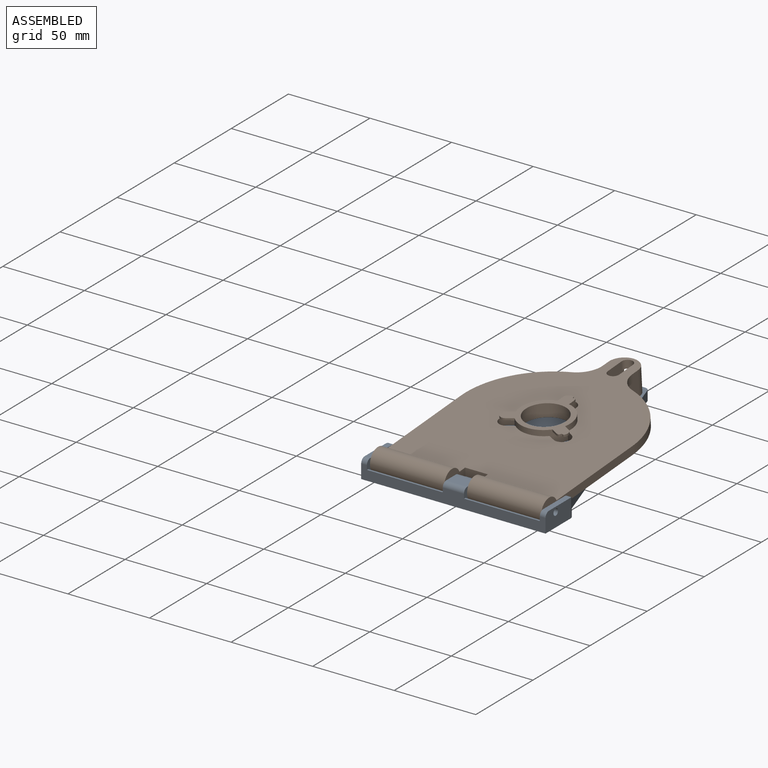
[diagram: assembled view]
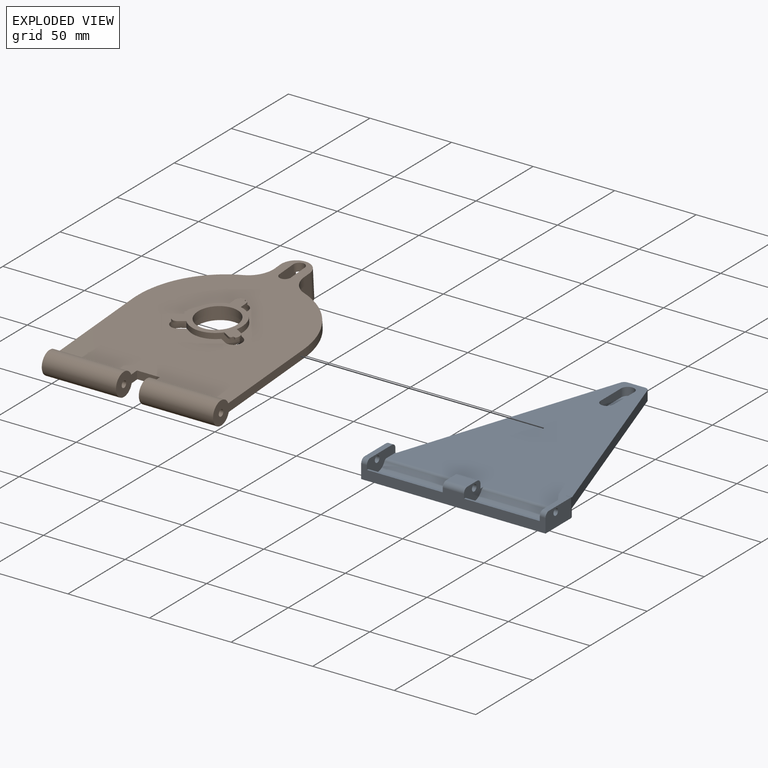
[diagram: exploded view]
GUIDED TOUR — FREECAD ASSEMBLY "ReolinkCameraSupport"

This assembly has 2 components, labeled P0..P1 below (a component is one placed body or linked part; the same part can appear more than once), held together by 1 modeled joint. A joint is a constraint between two components; its type names the relative motion it leaves free:
  REVOLUTE — leaves rotation about the listed axis free (a hinge).
Axis/direction vectors are unit vectors and 'through' points are millimeter coordinates, both in the assembly's world frame.

MATES
  1. REVOLUTE [Revolute] "Joint": P0 <-> P1, axis (1.000, 0.000, 0.000) through (107.25, 0.00, 2.50) mm

ASSEMBLY ORDER
  1. P0 — the base component [order verified]
  2. P1 [order verified]
(P1 verified with a relaxed clearance tolerance: the source model stores slight part interference there.)
Order-tag legend:
  [order verified] — this step's position reverses a verified removal order: the component was checked to insert without passing through the ones already placed.

Of the 2 components, 2 carry a construction recipe — the FreeCAD feature program (sketches with constraints, then the solid features that consume them) that regenerates the part from scratch, quoted from this document or from the linked companion document it references; the rest are supplied as boundary geometry only. The tour below walks the components in assembly order: each is shown spotlighted twice — in the assembled view, then in the exploded view, where a leader line traces a displaced component back to its assembled socket (components that stay in place when exploded have no leader line; saturated green if recipe-attached, orange if geometry-only; every other component desaturated gray) — followed by its recipe or geometry summary and the mates that hold it.
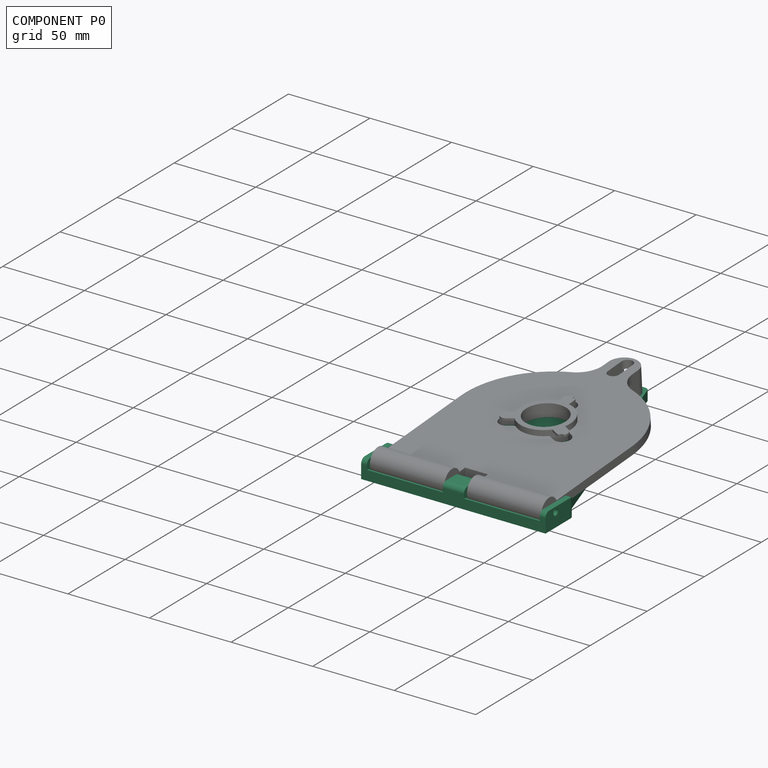
[diagram: component P0 — assembled]
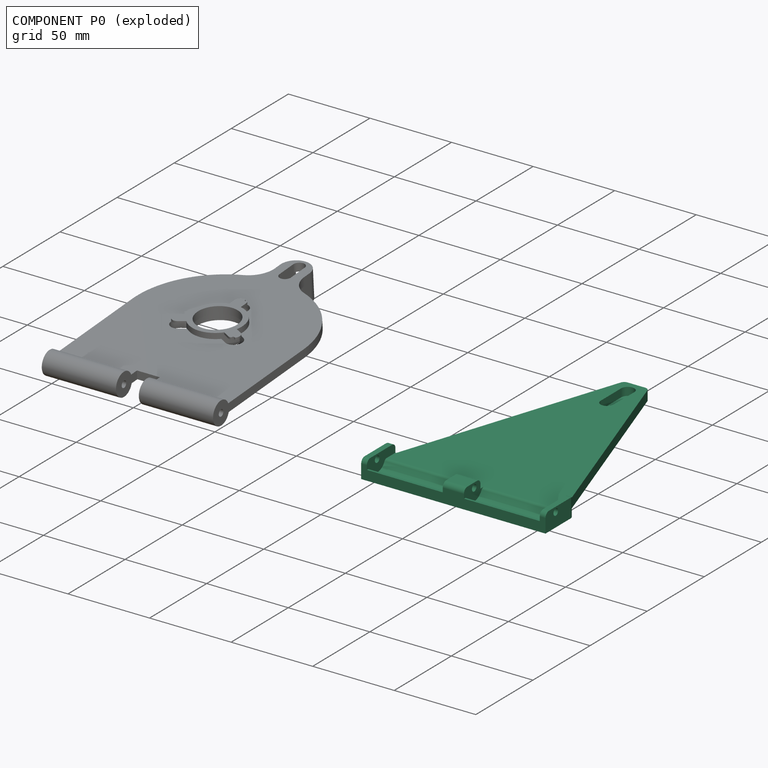
[diagram: component P0 — exploded]
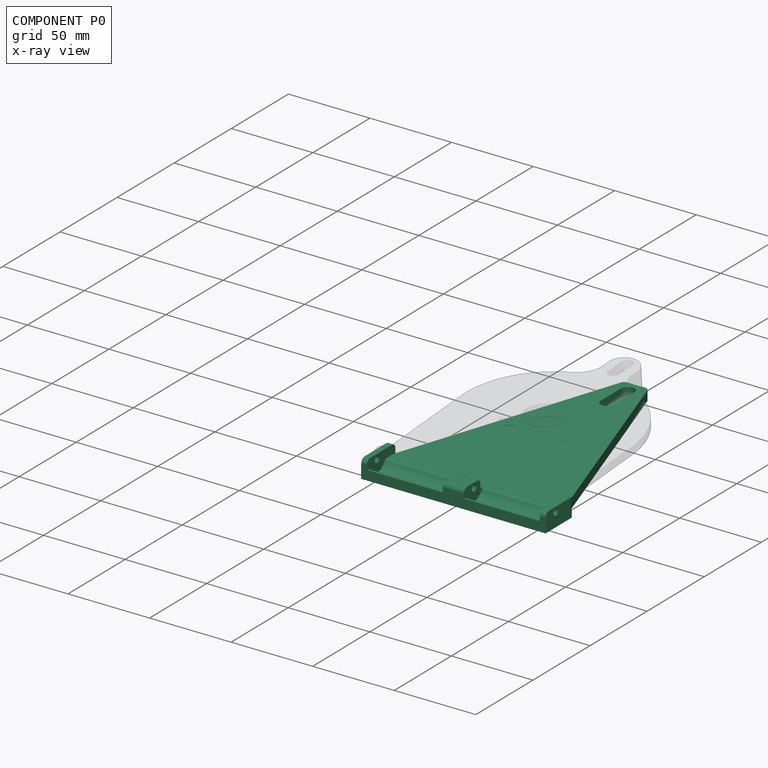
[diagram: component P0 — x-ray view]
COMPONENT P0 — recipe-attached ("Body002", modeled in this document).
Held by: REVOLUTE mate "Joint" to P1.
Construction recipe (the document's own serialized feature program — sketch geometry with constraints, then the solid features built on it; lengths are millimeters unless a unit is written):

FEATURE [PartDesign::SubShapeBinder] Binder
  BindCopyOnChange = 0
  BindMode = 0
  ClaimChildren = false
  Context = -> Body001 [Binder.]
  Fuse = false
  MakeFace = true
  OffsetFill = false
  OffsetIntersection = false
  OffsetJoinType = 0
  OffsetOpenResult = false
  PartialLoad = false
  Refine = true
  Relative = true
  Support = -> [Body[Pocket006.Face18,Pocket006.Face36,Pocket006.Face3,Pocket006.Face39,Pocket006.Face6,Pocket006.Face9,Pocket006.Face38]]
  _Version = 2
FEATURE [Sketcher::SketchObject] Sketch014
  ArcFitTolerance = 1e-06
  AttachmentSupport = -> [Origin002]
  ExternalGeometry = -> [Binder]
  ExternalTypes = [0,0]
  FullyConstrained = true
  MakeInternals = false
  MapMode = 5
  sketch-geometry (9):
    g0: LineSegment StartX=45 StartY=151.223 StartZ=0 EndX=2.3022e-12 EndY=16 EndZ=0
    g1: LineSegment StartX=2.3022e-12 StartY=16 StartZ=0 EndX=-4 EndY=16 EndZ=0
    g2: LineSegment StartX=-4 StartY=16 StartZ=0 EndX=-4 EndY=-9 EndZ=0
    g3: LineSegment StartX=-4 StartY=-9 StartZ=0 EndX=109 EndY=-9 EndZ=0
    g4: LineSegment StartX=109 StartY=-9 StartZ=0 EndX=109 EndY=16 EndZ=0
    g5: LineSegment StartX=109 StartY=16 StartZ=0 EndX=105 EndY=16 EndZ=0
    g6: LineSegment StartX=105 StartY=16 StartZ=0 EndX=60 EndY=151.223 EndZ=0
    g7: LineSegment StartX=60 StartY=151.223 StartZ=0 EndX=45 EndY=151.223 EndZ=0
    g8: GeomPoint X=52.5 Y=151.223 Z=0
  constraints (25):
    c: PointOnObject(g0,g-15)
    c: Coincident(g0,g1)
    c: Horizontal(g1)
    c: Coincident(g1,g2)
    c: Vertical(g2)
    c: Coincident(g2,g3)
    c: Horizontal(g3)
    c: Coincident(g3,g4)
    c: Vertical(g4)
    c: Coincident(g4,g5)
    c: PointOnObject(g5,g-9)
    c: Horizontal(g5)
    c: Coincident(g5,g6)
    c: Coincident(g6,g7)
    c: Coincident(g7,g0)
    c: Horizontal(g7)
    c: Symmetric(g7,g7,g8)
    c: Vertical(g8,g-31)
    c: DistanceX(g7,g7) = 15
    c: Distance(g-5,g7) = 2
    c: Equal(g5,g1)
    c: Distance(g1,g1) = 4
    c: Distance(g-35,g3) = 2
    c: Horizontal(g1,g5)
    c: DistanceY(g2,g2) = 25
FEATURE [PartDesign::Pad] Pad008
  Direction = (0,0,1)
  Length = 6
  Length2 = 10
  Profile = -> Sketch014
  ReferenceAxis = -> Sketch014 [N_Axis]
  Refine = true
  Reversed = true
  SideType = 0
  Suppressed = false
  Type = 0
  Type2 = 0
FEATURE [Sketcher::SketchObject] Sketch015
  ArcFitTolerance = 1e-06
  AttachmentSupport = -> [Pad008]
  ExternalGeometry = -> [Pad008,Binder]
  ExternalTypes = [0,0,0,0]
  FullyConstrained = true
  MakeInternals = false
  MapMode = 5
  sketch-geometry (12):
    g0: LineSegment StartX=-4 StartY=-9 StartZ=0 EndX=-0.5 EndY=-9 EndZ=0
    g1: LineSegment StartX=-0.5 StartY=-9 StartZ=0 EndX=-0.5 EndY=16 EndZ=0
    g2: LineSegment StartX=-0.5 StartY=16 StartZ=0 EndX=-4 EndY=16 EndZ=0
    g3: LineSegment StartX=-4 StartY=16 StartZ=0 EndX=-4 EndY=-9 EndZ=0
    g4: LineSegment StartX=109 StartY=-9 StartZ=0 EndX=109 EndY=16 EndZ=0
    g5: LineSegment StartX=109 StartY=16 StartZ=0 EndX=105.5 EndY=16 EndZ=0
    g6: LineSegment StartX=105.5 StartY=16 StartZ=0 EndX=105.5 EndY=-9 EndZ=0
    g7: LineSegment StartX=105.5 StartY=-9 StartZ=0 EndX=109 EndY=-9 EndZ=0
    g8: LineSegment StartX=46 StartY=-9 StartZ=0 EndX=59 EndY=-9 EndZ=0
    g9: LineSegment StartX=59 StartY=-9 StartZ=0 EndX=59 EndY=5.53835 EndZ=0
    g10: LineSegment StartX=59 StartY=5.53835 StartZ=0 EndX=46 EndY=5.53835 EndZ=0
    g11: LineSegment StartX=46 StartY=5.53835 StartZ=0 EndX=46 EndY=-9 EndZ=0
  constraints (33):
    c: Coincident(g0,g1)
    c: Coincident(g1,g2)
    c: Coincident(g2,g3)
    c: Coincident(g3,g0)
    c: Horizontal(g0)
    c: Horizontal(g2)
    c: Vertical(g1)
    c: DistanceX(g2,g2) = 3.5
    c: Coincident(g-5,g2)
    c: Coincident(g0,g-6)
    c: Coincident(g4,g5)
    c: Coincident(g5,g6)
    c: Coincident(g6,g7)
    c: Coincident(g7,g4)
    c: Vertical(g4)
    c: Vertical(g6)
    c: Horizontal(g5)
    c: Horizontal(g7)
    c: Coincident(g4,g-7)
    c: PointOnObject(g5,g-8)
    c: DistanceX(g5,g5) = 3.5
    c: Coincident(g8,g9)
    c: Coincident(g9,g10)
    c: Coincident(g10,g11)
    c: Coincident(g11,g8)
    c: Horizontal(g8)
    c: Horizontal(g10)
    c: Vertical(g9)
    c: Vertical(g11)
    c: PointOnObject(g8,g-6)
    c: Distance(g-12,g9) = 0.5
    c: Distance(g11,g-11) = 0.5
    c: Distance(g-13,g10) = 6
FEATURE [PartDesign::Pad] Pad009
  BaseFeature = -> Pad008
  Direction = (0,0,1)
  Length = 5.5
  Length2 = 10
  Profile = -> Sketch015
  ReferenceAxis = -> Sketch015 [N_Axis]
  Refine = true
  SideType = 0
  Suppressed = false
  Type = 0
  Type2 = 0
FEATURE [PartDesign::Pocket] Pocket007
  BaseFeature = -> Pad009
  Direction = (-1,0,0)
  Length = 5
  Length2 = 5
  Profile = -> Binder [Edge45]
  Refine = true
  SideType = 2
  Suppressed = false
  Type = 1
  Type2 = 0
FEATURE [PartDesign::Fillet] Fillet002
  Base = -> Pocket007 [Edge1,Edge5,Edge9,Edge37,Edge50,Edge44,Edge36,Edge42,Edge31,Edge10]
  BaseFeature = -> Pocket007
  Radius = 3
  Refine = true
  SupportTransform = false
  Suppressed = false
  UseAllEdges = false
FEATURE [Sketcher::SketchObject] Sketch016
  ArcFitTolerance = 1e-06
  AttachmentSupport = -> [Fillet002]
  ExternalGeometry = -> [Binder]
  ExternalTypes = [0]
  FullyConstrained = true
  MakeInternals = false
  MapMode = 5
  Placement = pos=(46,0,0) rot=(0.57735,-0.57735,-0.57735;2.0944rad)
  sketch-geometry (1):
    g0: Circle CenterX=0 CenterY=2.5 CenterZ=0 NormalX=0 NormalY=0 NormalZ=1 AngleXU=0 Radius=7.4
  constraints (2):
    c: Coincident(g0,g-3)
    c: Distance(g-3,g0) = 0.4
FEATURE [PartDesign::Pocket] Pocket008
  BaseFeature = -> Fillet002
  Direction = (1,0,0)
  Length = 5
  Length2 = 5
  Profile = -> Sketch016
  ReferenceAxis = -> Sketch016 [N_Axis]
  Refine = true
  SideType = 0
  Suppressed = false
  Type = 3
  Type2 = 0
  UpToFace = -> Fillet002 [Face11]
FEATURE [Sketcher::SketchObject] Sketch017
  ArcFitTolerance = 1e-06
  AttachmentSupport = -> [Pocket008]
  ExternalGeometry = -> [Binder,Pocket008]
  ExternalTypes = [0,0]
  FullyConstrained = true
  MakeInternals = false
  MapMode = 5
  Placement = pos=(59,0,0) rot=(0.57735,0.57735,0.57735;2.0944rad)
  sketch-geometry (1):
    g0: Circle CenterX=0 CenterY=2.5 CenterZ=0 NormalX=0 NormalY=0 NormalZ=1 AngleXU=0 Radius=7.4
  constraints (2):
    c: Coincident(g0,g-6)
    c: PointOnObject(g-6,g0)
FEATURE [PartDesign::Pocket] Pocket009
  BaseFeature = -> Pocket008
  Direction = (-1,0,0)
  Length = 5
  Length2 = 5
  Profile = -> Sketch017
  ReferenceAxis = -> Sketch017 [N_Axis]
  Refine = true
  SideType = 0
  Suppressed = false
  Type = 3
  Type2 = 0
  UpToFace = -> Pocket008 [Face9]
FEATURE [PartDesign::Fillet] Fillet003
  Base = -> Pocket009 [Edge13,Edge9,Edge40,Edge52]
  BaseFeature = -> Pocket009
  Radius = 2
  Refine = true
  SupportTransform = false
  Suppressed = false
  UseAllEdges = false
FEATURE [Sketcher::SketchObject] Sketch018
  ArcFitTolerance = 1e-06
  AttachmentSupport = -> [Fillet003]
  ExternalGeometry = -> [Binder]
  ExternalTypes = [0]
  FullyConstrained = true
  MakeInternals = false
  MapMode = 5
  sketch-geometry (7):
    g0: ArcOfCircle [constr] CenterX=52.5 CenterY=131.723 CenterZ=0 NormalX=0 NormalY=0 NormalZ=1 AngleXU=0 Radius=4 StartAngle=3.14159 EndAngle=6.28319
    g1: ArcOfCircle CenterX=52.5 CenterY=143.723 CenterZ=0 NormalX=0 NormalY=0 NormalZ=1 AngleXU=0 Radius=4 StartAngle=3.1e-15 EndAngle=3.14159
    g2: LineSegment StartX=48.5 StartY=131.723 StartZ=0 EndX=48.5 EndY=143.723 EndZ=0
    g3: LineSegment StartX=56.5 StartY=131.723 StartZ=0 EndX=56.5 EndY=143.723 EndZ=0
    g4: LineSegment StartX=48.5 StartY=131.723 StartZ=0 EndX=48.5 EndY=125.723 EndZ=0
    g5: ArcOfCircle CenterX=52.5 CenterY=125.723 CenterZ=0 NormalX=0 NormalY=0 NormalZ=1 AngleXU=0 Radius=4 StartAngle=3.14159 EndAngle=6.28319
    g6: LineSegment StartX=56.5 StartY=125.723 StartZ=0 EndX=56.5 EndY=131.723 EndZ=0
  constraints (15):
    c: Tangent(g0,g2) = 1.5708
    c: Tangent(g0,g3) = -1.5708
    c: Tangent(g1,g2) = 1.5708
    c: Tangent(g1,g3) = -1.5708
    c: Equal(g0,g1)
    c: Radius(g0) = 4
    c: Coincident(g0,g-34)
    c: Coincident(g1,g-31)
    c: Coincident(g0,g4)
    c: Tangent(g4,g5) = -1.5708
    c: Tangent(g5,g6) = -1.5708
    c: Vertical(g6)
    c: Coincident(g0,g6)
    c: DistanceY(g6,g6) = 6
    c: Vertical(g4)
FEATURE [PartDesign::Pocket] Pocket010
  BaseFeature = -> Fillet003
  Direction = (0,0,-1)
  Length = 5
  Length2 = 5
  Profile = -> Sketch018
  ReferenceAxis = -> Sketch018 [N_Axis]
  Refine = true
  SideType = 0
  Suppressed = false
  Type = 0
  Type2 = 0
FEATURE [PartDesign::Body] Body001
  AllowCompound = false
  Group = -> [Binder,Sketch014,Pad008,Sketch015,Pad009,Pocket007,Fillet002,Sketch016,Pocket008,Sketch017,Pocket009,Fillet003,Sketch018,Pocket010]
  Origin = -> Origin002
  Tip = -> Pocket010
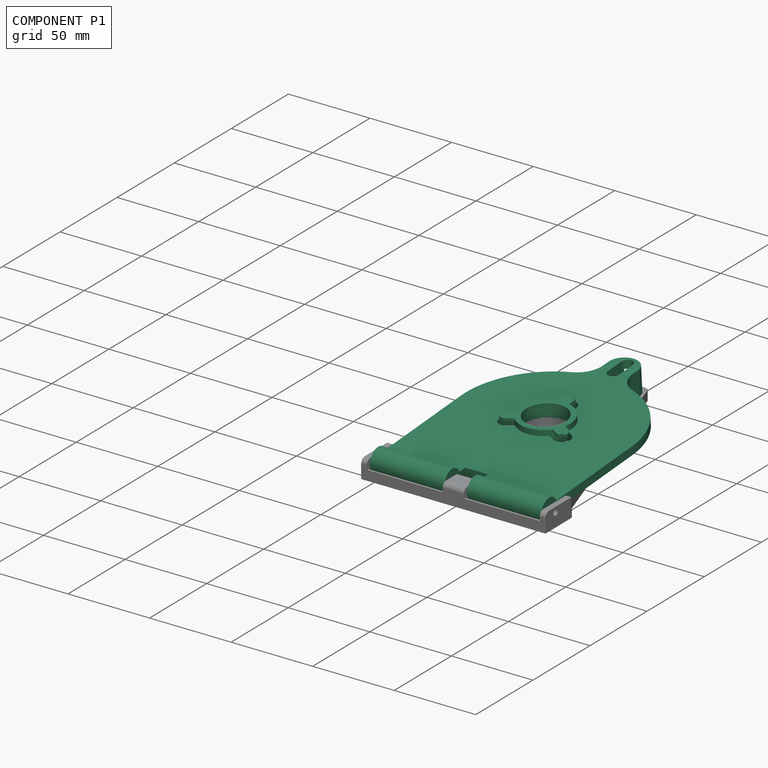
[diagram: component P1 — assembled]
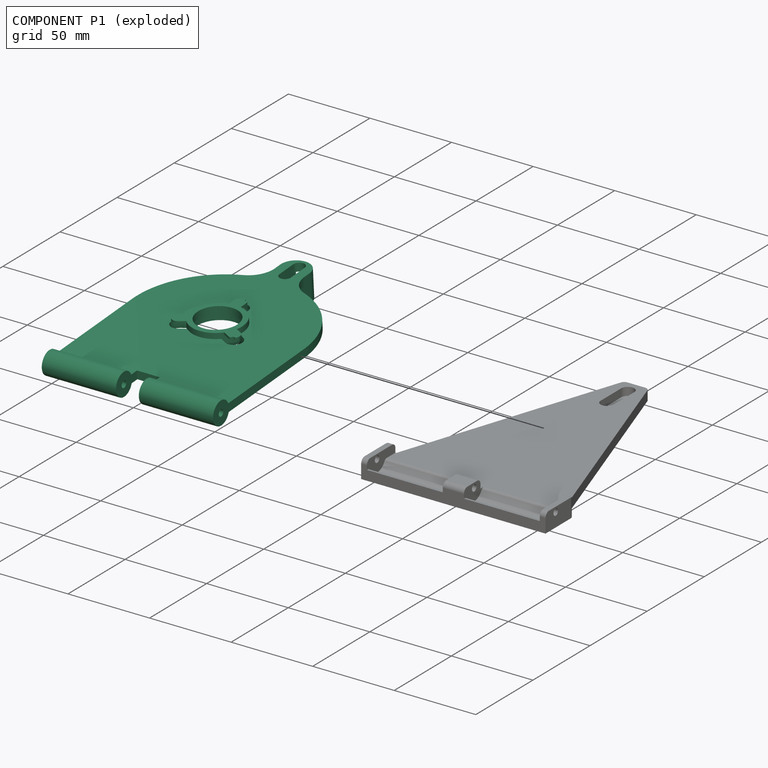
[diagram: component P1 — exploded]
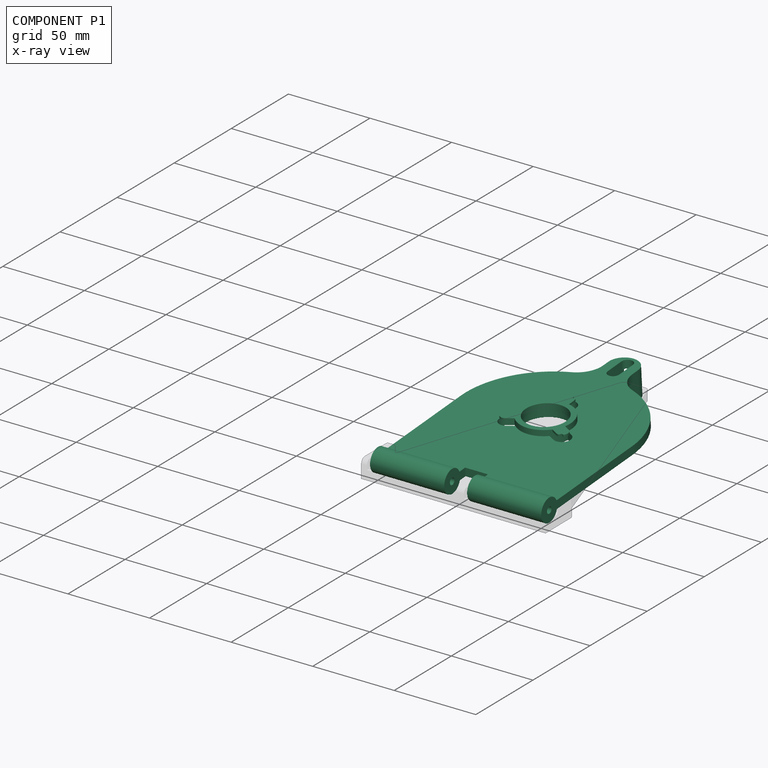
[diagram: component P1 — x-ray view]
COMPONENT P1 — recipe-attached ("Body003", modeled in this document).
Held by: REVOLUTE mate "Joint" to P0.
Construction recipe (the document's own serialized feature program — sketch geometry with constraints, then the solid features built on it; lengths are millimeters unless a unit is written):

FEATURE [Sketcher::SketchObject] Sketch
  ArcFitTolerance = 1e-06
  AttachmentSupport = -> [Origin]
  ExternalTypes = [0]
  FullyConstrained = true
  MakeInternals = false
  MapMode = 5
  sketch-geometry (4):
    g0: LineSegment StartX=0 StartY=0 StartZ=0 EndX=1.04166e-11 EndY=72.5 EndZ=0
    g1: ArcOfCircle CenterX=52.5 CenterY=72.5 CenterZ=0 NormalX=0 NormalY=0 NormalZ=1 AngleXU=0 Radius=52.5 StartAngle=-2.04e-14 EndAngle=3.14159
    g2: LineSegment StartX=105 StartY=72.5 StartZ=0 EndX=105 EndY=0 EndZ=0
    g3: LineSegment StartX=105 StartY=0 StartZ=0 EndX=0 EndY=0 EndZ=0
  constraints (10):
    c: Coincident(g-1,g0)
    c: PointOnObject(g0,g-2)
    c: Tangent(g0,g1) = 1.5708
    c: Tangent(g1,g2) = 1.5708
    c: Coincident(g2,g3)
    c: Coincident(g3,g0)
    c: Horizontal(g3)
    c: Vertical(g2)
    c: Radius(g1) = 52.5
    c: Distance(g1,g3) = 20
FEATURE [PartDesign::Pad] Pad
  Direction = (0,0,1)
  Length = 5
  Length2 = 10
  Profile = -> Sketch
  ReferenceAxis = -> Sketch [N_Axis]
  Refine = true
  SideType = 0
  Suppressed = false
  Type = 0
  Type2 = 0
FEATURE [Sketcher::SketchObject] Sketch001
  ArcFitTolerance = 1e-06
  AttachmentSupport = -> [Pad]
  ExternalGeometry = -> [Pad]
  ExternalTypes = [0]
  FullyConstrained = true
  MakeInternals = false
  MapMode = 5
  Placement = pos=(0,0,5) rot=(0,0,1;0rad)
  sketch-geometry (1):
    g0: Circle CenterX=52.5 CenterY=72.5 CenterZ=0 NormalX=0 NormalY=0 NormalZ=1 AngleXU=0 Radius=15.8
  constraints (2):
    c: Diameter(g0) = 31.6
    c: Coincident(g0,g-3)
FEATURE [PartDesign::Pad] Pad001
  BaseFeature = -> Pad
  Direction = (0,0,1)
  Length = 3.5
  Length2 = 10
  Profile = -> Sketch001
  ReferenceAxis = -> Sketch001 [N_Axis]
  Refine = true
  SideType = 0
  Suppressed = false
  Type = 0
  Type2 = 0
FEATURE [Sketcher::SketchObject] Sketch002
  ArcFitTolerance = 1e-06
  AttachmentSupport = -> [Pad001]
  ExternalGeometry = -> [Pad001]
  ExternalTypes = [0]
  FullyConstrained = true
  MakeInternals = false
  MapMode = 5
  Placement = pos=(0,0,8.5) rot=(0,0,1;0rad)
  sketch-geometry (11):
    g0: LineSegment StartX=49 StartY=87.9075 StartZ=0 EndX=49 EndY=92.4075 EndZ=0
    g1: ArcOfCircle CenterX=52.5 CenterY=92.4075 CenterZ=0 NormalX=0 NormalY=0 NormalZ=1 AngleXU=0 Radius=3.5 StartAngle=8e-16 EndAngle=0.608246
    g2: LineSegment StartX=56 StartY=92.4075 StartZ=0 EndX=56 EndY=87.9075 EndZ=0
    g3: LineSegment StartX=56 StartY=87.9075 StartZ=0 EndX=49 EndY=87.9075 EndZ=0
    g4: GeomPoint X=52.5 Y=87.9075 Z=0
    g5: LineSegment [constr] StartX=52.5 StartY=95.9075 StartZ=0 EndX=56 EndY=95.9075 EndZ=0
    g6: LineSegment [constr] StartX=56 StartY=95.9075 StartZ=0 EndX=56 EndY=92.4075 EndZ=0
    g7: LineSegment StartX=53.5 StartY=95.7616 StartZ=0 EndX=53.8741 EndY=94.3075 EndZ=0
    g8: LineSegment StartX=53.8741 StartY=94.3075 StartZ=0 EndX=55.3723 EndY=94.4075 EndZ=0
    g9: ArcOfCircle CenterX=52.5 CenterY=92.4075 CenterZ=0 NormalX=0 NormalY=0 NormalZ=1 AngleXU=0 Radius=3.5 StartAngle=1.28104 EndAngle=3.14159
    g10: GeomPoint [constr] X=52.5 Y=72.5 Z=0
  constraints (28):
    c: PointOnObject(g0,g-3)
    c: Vertical(g0)
    c: Tangent(g0,g9) = 1.5708
    c: Tangent(g1,g2) = 1.5708
    c: Coincident(g2,g3)
    c: Coincident(g3,g0)
    c: Horizontal(g3)
    c: Vertical(g2)
    c: PointOnObject(g2,g-3)
    c: Symmetric(g3,g3,g4)
    c: DistanceX(g3,g3) = 7
    c: Horizontal(g5)
    c: Coincident(g5,g6)
    c: Coincident(g6,g1)
    c: Vertical(g6)
    c: DistanceY(g2,g5) = 8
    c: Vertical(g5,g1)
    c: Coincident(g7,g8)
    c: Distance(g8,g5) = 1.5
    c: DistanceX(g5,g7) = 1
    c: Equal(g8,g7)
    c: Distance(g7,g5) = 1.6
    c: PointOnObject(g5,g9)
    c: Coincident(g7,g9)
    c: Coincident(g8,g1)
    c: Coincident(g1,g9)
    c: Equal(g9,g1)
    c: Coincident(g10,g-3)
FEATURE [PartDesign::Pad] Pad002
  BaseFeature = -> Pad001
  Direction = (0,0,1)
  Length = 1.25
  Length2 = 10
  Profile = -> Sketch002
  ReferenceAxis = -> Sketch002 [N_Axis]
  Refine = true
  Reversed = true
  SideType = 0
  Suppressed = false
  Type = 0
  Type2 = 0
FEATURE [PartDesign::Fillet] Fillet
  Base = -> Pad002 [Edge30,Edge34,Edge32]
  BaseFeature = -> Pad002
  Radius = 0.5
  Refine = true
  SupportTransform = false
  Suppressed = false
  UseAllEdges = false
FEATURE [PartDesign::Line] DatumLine
  AttacherType = Attacher::AttachEngineLine
  AttachmentOffset = pos=(0,-1.09,0) rot=(0,0,1;0rad)
  AttachmentSupport = -> [Fillet]
  Length = 20
  MapMode = 42
  Placement = pos=(52.4969,72.5013,-6.22e-14) rot=(0,0,1;0rad)
  ResizeMode = 0
FEATURE [PartDesign::PolarPattern] PolarPattern
  Angle = 360
  Axis = -> DatumLine
  BaseFeature = -> Fillet
  Mode = 0
  Occurrences = 3
  Offset = 120
  Originals = -> [Pad002,Fillet]
  Refine = true
  SpacingPattern = [0]
  Spacings = [-1,-1]
  Suppressed = false
  TransformMode = 0
FEATURE [Sketcher::SketchObject] Sketch003
  ArcFitTolerance = 1e-06
  AttachmentSupport = -> [PolarPattern]
  ExternalGeometry = -> [PolarPattern]
  ExternalTypes = [0]
  FullyConstrained = true
  MakeInternals = false
  MapMode = 5
  Placement = pos=(5.9e-15,0,8.5) rot=(0,0,1;0rad)
  sketch-geometry (1):
    g0: Circle CenterX=52.5 CenterY=72.5 CenterZ=0 NormalX=0 NormalY=0 NormalZ=1 AngleXU=0 Radius=12.53
  constraints (2):
    c: Coincident(g0,g-32)
    c: Distance(g0,g-32) = 3.27
FEATURE [PartDesign::Pocket] Pocket
  BaseFeature = -> PolarPattern
  Direction = (0,0,-1)
  Length = 5
  Length2 = 5
  Profile = -> Sketch003
  ReferenceAxis = -> Sketch003 [N_Axis]
  Refine = true
  SideType = 0
  Suppressed = false
  Type = 1
  Type2 = 0
FEATURE [Sketcher::SketchObject] Sketch004
  ArcFitTolerance = 1e-06
  AttachmentSupport = -> [Pocket]
  ExternalGeometry = -> [Pocket]
  ExternalTypes = [0]
  FullyConstrained = true
  MakeInternals = false
  MapMode = 5
  Placement = pos=(0,0,0) rot=(1,0,0;3.14159rad)
  sketch-geometry (1):
    g0: Circle CenterX=52.5 CenterY=-72.5 CenterZ=0 NormalX=0 NormalY=0 NormalZ=1 AngleXU=0 Radius=13.5
  constraints (2):
    c: Diameter(g0) = 27
    c: Coincident(g0,g-7)
FEATURE [PartDesign::Pocket] Pocket001
  BaseFeature = -> Pocket
  Direction = (0,0,1)
  Length = 4
  Length2 = 5
  Profile = -> Sketch004
  ReferenceAxis = -> Sketch004 [N_Axis]
  Refine = true
  SideType = 0
  Suppressed = false
  Type = 0
  Type2 = 0
FEATURE [Sketcher::SketchObject] Sketch005
  ArcFitTolerance = 1e-06
  AttachmentSupport = -> [Pocket001]
  ExternalGeometry = -> [Pocket001]
  ExternalTypes = [0]
  FullyConstrained = true
  MakeInternals = false
  MapMode = 5
  Placement = pos=(0,0,5) rot=(0,0,1;0rad)
  sketch-geometry (6):
    g0: LineSegment StartX=47.5 StartY=87.488 StartZ=0 EndX=47.5 EndY=91.988 EndZ=0
    g1: ArcOfCircle CenterX=52.5 CenterY=91.988 CenterZ=0 NormalX=0 NormalY=0 NormalZ=1 AngleXU=0 Radius=5 StartAngle=1.1e-15 EndAngle=3.14159
    g2: LineSegment StartX=57.5 StartY=91.988 StartZ=0 EndX=57.5 EndY=87.488 EndZ=0
    g3: LineSegment StartX=57.5 StartY=87.488 StartZ=0 EndX=47.5 EndY=87.488 EndZ=0
    g4: GeomPoint X=52.5 Y=87.488 Z=0
    g5: GeomPoint X=52.5 Y=96.988 Z=0
  constraints (14):
    c: PointOnObject(g0,g-7)
    c: Vertical(g0)
    c: Tangent(g0,g1) = 1.5708
    c: Tangent(g1,g2) = 1.5708
    c: Coincident(g2,g3)
    c: Coincident(g3,g0)
    c: Horizontal(g3)
    c: PointOnObject(g2,g-7)
    c: Vertical(g2)
    c: DistanceX(g3,g3) = 10
    c: Symmetric(g3,g3,g4)
    c: PointOnObject(g5,g1)
    c: Vertical(g1,g5)
    c: DistanceY(g4,g5) = 9.5
FEATURE [PartDesign::Pocket] Pocket002
  BaseFeature = -> Pocket001
  Direction = (0,0,-1)
  Length = 5
  Length2 = 5
  Profile = -> Sketch005
  ReferenceAxis = -> Sketch005 [N_Axis]
  Refine = true
  SideType = 0
  Suppressed = false
  Type = 0
  Type2 = 0
FEATURE [PartDesign::PolarPattern] PolarPattern001
  Angle = 360
  Axis = -> DatumLine
  BaseFeature = -> Pocket002
  Mode = 0
  Occurrences = 3
  Offset = 120
  Originals = -> [Pocket002]
  Refine = true
  SpacingPattern = [0]
  Spacings = [-1,-1]
  Suppressed = false
  TransformMode = 0
FEATURE [PartDesign::Pad] Pad003
  BaseFeature = -> PolarPattern001
  Direction = (-1.8e-15,1e-15,-1)
  Length = 10
  Length2 = 10
  Profile = -> PolarPattern001 [Face37,Face38,Face36]
  Refine = true
  SideType = 0
  Suppressed = false
  Type = 3
  Type2 = 0
  UpToFace = -> PolarPattern001 [Face57]
FEATURE [Sketcher::SketchObject] Sketch006
  ArcFitTolerance = 1e-06
  AttachmentSupport = -> [Pad003]
  ExternalGeometry = -> [Pad003]
  ExternalTypes = [0]
  FullyConstrained = true
  MakeInternals = false
  MapMode = 5
  Placement = pos=(0,0,5) rot=(0,0,1;0rad)
  sketch-geometry (1):
    g0: Circle CenterX=52.5 CenterY=72.5 CenterZ=0 NormalX=0 NormalY=0 NormalZ=1 AngleXU=0 Radius=52.5
  constraints (2):
    c: Coincident(g0,g-3)
    c: PointOnObject(g-3,g0)
FEATURE [Sketcher::SketchObject] Sketch007
  ArcFitTolerance = 1e-06
  AttachmentSupport = -> [Pad003]
  ExternalGeometry = -> [Pad003]
  ExternalTypes = [0]
  FullyConstrained = true
  MakeInternals = false
  MapMode = 5
  Placement = pos=(105,0,0) rot=(0.57735,0.57735,0.57735;2.0944rad)
  sketch-geometry (1):
    g0: Circle CenterX=0 CenterY=2.5 CenterZ=0 NormalX=0 NormalY=0 NormalZ=1 AngleXU=0 Radius=7
  constraints (2):
    c: Diameter(g0) = 14
    c: Symmetric(g-4,g-4,g0)
FEATURE [PartDesign::Pad] Pad004
  BaseFeature = -> Pad003
  Direction = (1,0,0)
  Length = 10
  Length2 = 10
  Profile = -> Sketch007
  ReferenceAxis = -> Sketch007 [N_Axis]
  Refine = true
  SideType = 0
  Suppressed = false
  Type = 3
  Type2 = 0
  UpToFace = -> Pad003 [Face2]
FEATURE [Sketcher::SketchObject] Sketch008
  ArcFitTolerance = 1e-06
  AttachmentSupport = -> [Pad004]
  ExternalGeometry = -> [Pad004]
  ExternalTypes = [0]
  FullyConstrained = true
  MakeInternals = false
  MapMode = 5
  Placement = pos=(0,0,5) rot=(0,0,1;0rad)
  sketch-geometry (4):
    g0: LineSegment StartX=43.5 StartY=124.223 StartZ=0 EndX=43.5 EndY=140.223 EndZ=0
    g1: ArcOfCircle CenterX=52.5 CenterY=140.223 CenterZ=0 NormalX=0 NormalY=0 NormalZ=1 AngleXU=0 Radius=9 StartAngle=0 EndAngle=3.14159
    g2: LineSegment StartX=61.5 StartY=140.223 StartZ=0 EndX=61.5 EndY=124.223 EndZ=0
    g3: LineSegment StartX=61.5 StartY=124.223 StartZ=0 EndX=43.5 EndY=124.223 EndZ=0
  constraints (11):
    c: PointOnObject(g0,g-4)
    c: Vertical(g0)
    c: Tangent(g0,g1) = 1.5708
    c: Tangent(g1,g2) = 1.5708
    c: Coincident(g2,g3)
    c: Coincident(g3,g0)
    c: Horizontal(g3)
    c: Vertical(g2)
    c: Vertical(g1,g-16)
    c: DistanceX(g3,g3) = 18
    c: DistanceY(g2,g2) = 16
FEATURE [PartDesign::Pad] Pad005
  BaseFeature = -> Pad004
  Direction = (0,0,1)
  Length = 10
  Length2 = 10
  Profile = -> Sketch008
  ReferenceAxis = -> Sketch008 [N_Axis]
  Refine = true
  SideType = 0
  Suppressed = false
  Type = 3
  Type2 = 0
  UpToFace = -> Pad004 [Face2]
FEATURE [Sketcher::SketchObject] Sketch009
  ArcFitTolerance = 1e-06
  AttachmentSupport = -> [Pad005]
  ExternalGeometry = -> [Pad005]
  ExternalTypes = [0]
  FullyConstrained = true
  MakeInternals = false
  MapMode = 5
  Placement = pos=(0,0,5) rot=(0,0,1;0rad)
  sketch-geometry (4):
    g0: ArcOfCircle CenterX=52.5 CenterY=143.723 CenterZ=0 NormalX=0 NormalY=0 NormalZ=1 AngleXU=0 Radius=3.5 StartAngle=-2.7e-15 EndAngle=3.14159
    g1: ArcOfCircle CenterX=52.5 CenterY=131.723 CenterZ=0 NormalX=0 NormalY=0 NormalZ=1 AngleXU=0 Radius=3.5 StartAngle=3.14159 EndAngle=6.28319
    g2: LineSegment StartX=56 StartY=143.723 StartZ=0 EndX=56 EndY=131.723 EndZ=0
    g3: LineSegment StartX=49 StartY=143.723 StartZ=0 EndX=49 EndY=131.723 EndZ=0
  constraints (10):
    c: Tangent(g0,g2) = 1.5708
    c: Tangent(g0,g3) = -1.5708
    c: Tangent(g1,g2) = 1.5708
    c: Tangent(g1,g3) = -1.5708
    c: Equal(g0,g1)
    c: Vertical(g2)
    c: DistanceY(g2,g2) = 12
    c: Radius(g1) = 3.5
    c: DistanceY(g-8,g0) = 3.5
    c: Vertical(g0,g-8)
FEATURE [PartDesign::Pocket] Pocket003
  BaseFeature = -> Pad005
  Direction = (0,0,-1)
  Length = 5
  Length2 = 5
  Profile = -> Sketch009
  ReferenceAxis = -> Sketch009 [N_Axis]
  Refine = true
  SideType = 0
  Suppressed = false
  Type = 0
  Type2 = 0
FEATURE [PartDesign::Fillet] Fillet001
  Base = -> Pocket003 [Edge58,Edge57]
  BaseFeature = -> Pocket003
  Radius = 15
  Refine = true
  SupportTransform = false
  Suppressed = false
  UseAllEdges = false
FEATURE [Sketcher::SketchObject] Sketch010
  ArcFitTolerance = 1e-06
  AttachmentSupport = -> [Fillet001]
  ExternalGeometry = -> [Fillet001]
  ExternalTypes = [0,0,0,0]
  FullyConstrained = true
  MakeInternals = false
  MapMode = 5
  Placement = pos=(0,0,0) rot=(1,0,0;3.14159rad)
  sketch-geometry (8):
    g0: LineSegment StartX=47.5 StartY=-126.742 StartZ=0 EndX=47.5 EndY=-147.706 EndZ=0
    g1: LineSegment StartX=47.5 StartY=-126.742 StartZ=0 EndX=43.5 EndY=-126.742 EndZ=0
    g2: LineSegment StartX=43.5 StartY=-126.742 StartZ=0 EndX=43.5 EndY=-140.223 EndZ=0
    g3: LineSegment StartX=61.5 StartY=-126.742 StartZ=0 EndX=57.5 EndY=-126.742 EndZ=0
    g4: LineSegment StartX=57.5 StartY=-126.742 StartZ=0 EndX=57.5 EndY=-147.706 EndZ=0
    g5: LineSegment StartX=61.5 StartY=-140.223 StartZ=0 EndX=61.5 EndY=-126.742 EndZ=0
    g6: ArcOfCircle CenterX=52.5 CenterY=-140.223 CenterZ=0 NormalX=0 NormalY=0 NormalZ=1 AngleXU=0 Radius=9 StartAngle=3.14159 EndAngle=4.12336
    g7: ArcOfCircle CenterX=52.5 CenterY=-140.223 CenterZ=0 NormalX=0 NormalY=0 NormalZ=1 AngleXU=0 Radius=9 StartAngle=5.30142 EndAngle=6.28318
  constraints (24):
    c: PointOnObject(g0,g-11)
    c: Vertical(g0)
    c: Coincident(g0,g1)
    c: Horizontal(g1)
    c: Coincident(g1,g2)
    c: PointOnObject(g2,g-11)
    c: Vertical(g2)
    c: Horizontal(g3)
    c: Coincident(g3,g4)
    c: PointOnObject(g4,g-11)
    c: Vertical(g4)
    c: Coincident(g5,g3)
    c: Vertical(g5)
    c: Equal(g3,g1)
    c: Horizontal(g1,g3)
    c: Equal(g0,g4)
    c: Coincident(g6,g-11)
    c: Coincident(g6,g0)
    c: Coincident(g7,g6)
    c: Coincident(g7,g5)
    c: Coincident(g7,g4)
    c: Distance(g0,g4) = 10
    c: Distance(g1,g1) = 4
    c: Coincident(g2,g6)
FEATURE [PartDesign::Pad] Pad006
  BaseFeature = -> Fillet001
  Direction = (0,0,-1)
  Length = 10
  Length2 = 10
  Profile = -> Sketch010
  ReferenceAxis = -> Sketch010 [N_Axis]
  Refine = true
  SideType = 0
  Suppressed = false
  Type = 0
  Type2 = 0
FEATURE [PartDesign::Hole] Hole
  BaseFeature = -> Pad006
  BaseProfileType = 7
  CustomThreadClearance = 0
  Depth = 381.162
  DepthType = 1
  Diameter = 4
  DrillForDepth = false
  DrillPoint = 1
  DrillPointAngle = 118
  HoleCutCountersinkAngle = 90
  HoleCutCustomValues = false
  HoleCutDepth = 0
  HoleCutDiameter = 0
  HoleCutType = 0
  ModelThread = false
  Profile = -> Pad006 [Face3]
  Refine = true
  Suppressed = false
  Tapered = false
  TaperedAngle = 90
  ThreadClass = 0
  ThreadDepth = 381.162
  ThreadDepthType = 0
  ThreadDiameter = 4
  ThreadDirection = 0
  ThreadFit = 0
  ThreadSize = 0
  ThreadType = 0
  Threaded = false
  UseCustomThreadClearance = false
FEATURE [Sketcher::SketchObject] Sketch011
  ArcFitTolerance = 1e-06
  AttachmentSupport = -> [Hole]
  ExternalGeometry = -> [Hole]
  ExternalTypes = [0,0]
  FullyConstrained = true
  MakeInternals = false
  MapMode = 5
  Placement = pos=(0,0,-10) rot=(1,0,0;3.14159rad)
  sketch-geometry (4):
    g0: LineSegment StartX=43.5 StartY=-126.742 StartZ=0 EndX=61.5 EndY=-126.742 EndZ=0
    g1: LineSegment StartX=61.5 StartY=-126.742 StartZ=0 EndX=61.5 EndY=-140.223 EndZ=0
    g2: ArcOfCircle CenterX=52.5 CenterY=-140.223 CenterZ=0 NormalX=0 NormalY=0 NormalZ=1 AngleXU=0 Radius=9 StartAngle=3.14159 EndAngle=6.28319
    g3: LineSegment StartX=43.5 StartY=-140.223 StartZ=0 EndX=43.5 EndY=-126.742 EndZ=0
  constraints (8):
    c: Coincident(g-6,g0)
    c: Coincident(g0,g-10)
    c: Coincident(g0,g1)
    c: Coincident(g1,g-10)
    c: Tangent(g1,g2) = 1.5708
    c: Coincident(g2,g-5)
    c: Coincident(g3,g2)
    c: Coincident(g3,g0)
FEATURE [PartDesign::Pad] Pad007
  BaseFeature = -> Hole
  Direction = (0,0,-1)
  Length = 2
  Length2 = 10
  Profile = -> Sketch011
  ReferenceAxis = -> Sketch011 [N_Axis]
  Refine = true
  SideType = 0
  Suppressed = false
  Type = 0
  Type2 = 0
FEATURE [Sketcher::SketchObject] Sketch012
  ArcFitTolerance = 1e-06
  AttachmentSupport = -> [Pad007]
  ExternalGeometry = -> [Pad007]
  ExternalTypes = [0,0,0,0]
  FullyConstrained = true
  MakeInternals = false
  MapMode = 5
  Placement = pos=(0,0,-10) rot=(0,0,1;0rad)
FEATURE [PartDesign::Pocket] Pocket004
  BaseFeature = -> Pad007
  Direction = (0,0,-1)
  Length = 5
  Length2 = 5
  Profile = -> Sketch012
  ReferenceAxis = -> Sketch012 [N_Axis]
  Refine = true
  SideType = 0
  Suppressed = false
  Type = 0
  Type2 = 0
FEATURE [Sketcher::SketchObject] Sketch013
  ArcFitTolerance = 1e-06
  AttachmentSupport = -> [Origin]
  ExternalGeometry = -> [Pocket004]
  ExternalTypes = [0]
  FullyConstrained = true
  MakeInternals = false
  MapMode = 5
  sketch-geometry (5):
    g0: LineSegment StartX=45.5 StartY=-20.5383 StartZ=0 EndX=59.5 EndY=-20.5383 EndZ=0
    g1: LineSegment StartX=59.5 StartY=-20.5383 StartZ=0 EndX=59.5 EndY=6.53835 EndZ=0
    g2: LineSegment StartX=59.5 StartY=6.53835 StartZ=0 EndX=45.5 EndY=6.53835 EndZ=0
    g3: LineSegment StartX=45.5 StartY=6.53835 StartZ=0 EndX=45.5 EndY=-20.5383 EndZ=0
    g4: GeomPoint [constr] X=52.5 Y=-7 Z=0
  constraints (12):
    c: Coincident(g0,g1)
    c: Coincident(g1,g2)
    c: Coincident(g2,g3)
    c: Coincident(g3,g0)
    c: Horizontal(g0)
    c: Horizontal(g2)
    c: Vertical(g1)
    c: Vertical(g3)
    c: Symmetric(g2,g0,g4)
    c: Distance(g1,g3) = 14
    c: Symmetric(g-6,g-6,g4)
    c: PointOnObject(g1,g-8)
FEATURE [PartDesign::Pocket] Pocket005
  BaseFeature = -> Pocket004
  Direction = (0,0,-1)
  Length = 5
  Length2 = 5
  Profile = -> Sketch013
  ReferenceAxis = -> Sketch013 [N_Axis]
  Refine = true
  SideType = 2
  Suppressed = false
  Type = 1
  Type2 = 0
FEATURE [PartDesign::Pocket] Pocket006
  BaseFeature = -> Pocket005
  Direction = (0,1,0)
  Length = 5
  Length2 = 5
  Profile = -> Pocket005 [Face5]
  Refine = true
  SideType = 0
  Suppressed = false
  Type = 0
  Type2 = 0
FEATURE [PartDesign::Body] Body
  AllowCompound = false
  Group = -> [Sketch,Pad,Sketch001,Pad001,Sketch002,Pad002,Fillet,DatumLine,PolarPattern,Sketch003,Pocket,Sketch004,Pocket001,Sketch005,Pocket002,PolarPattern001,Pad003,Sketch006,Sketch007,Pad004,Sketch008,Pad005,Sketch009,Pocket003,Fillet001,Sketch010,Pad006,Hole,Sketch011,Pad007,Sketch012,Pocket004,Sketch013,Pocket005,Pocket006]
  Origin = -> Origin
  Tip = -> Pocket006
PROVENANCE & LICENSES
Assembly and component geometry: a FreeCAD (.FCStd) document from a public repository crawl; components, placements and joints were extracted with FreeCAD and each solid tessellated.
Construction recipes: the document's own serialized feature recipes (and, for linked parts, the recipes of companion documents from the same project).
License: as declared in the source repository (recorded in the dataset sidecar).
Joints: native FreeCAD joints and A2plus constraints are mapped to standard mate types.
Verification: 2 of this assembly's 2 components carry a construction recipe (2 from this document itself); the rest are geometry-only. Every component's tessellation passed the extraction mesh gates (mesh-volume checksum against the B-rep where available, bounding-box inflation <= 2%).
Renders: orthographic iso camera (az 35 / el 25); the floor grid conveys scale (grid pitch printed in each image; no ruler). In the exploded view each component is displaced by its stored offset vector: the offsets alone carry the explosion direction (mate normal/axis signs are not orientation cues and do not encode it), and separation distances are assigned per mate-chain, not proportionally to assembly-order depth.
